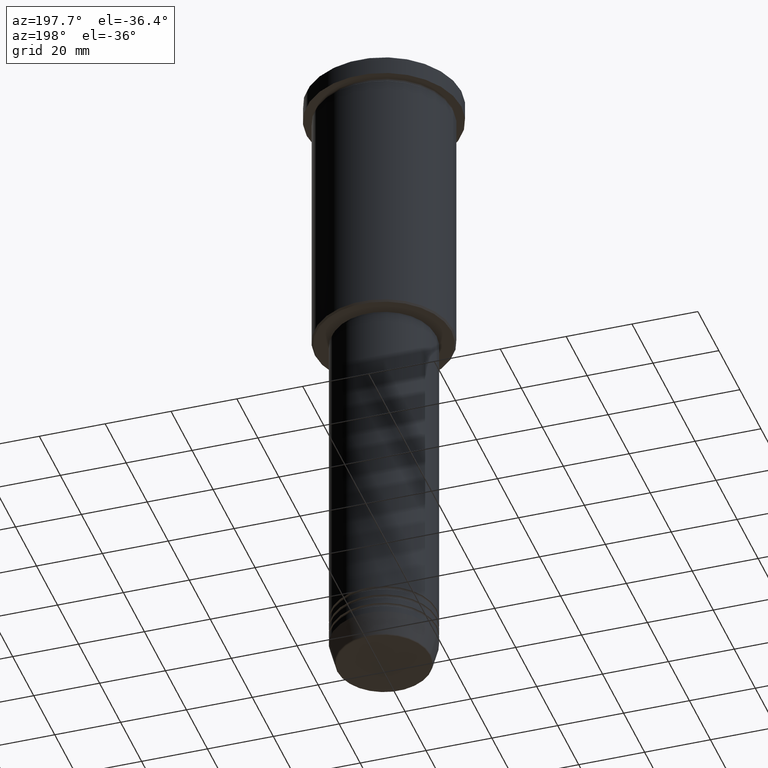
[diagram: clean part render]
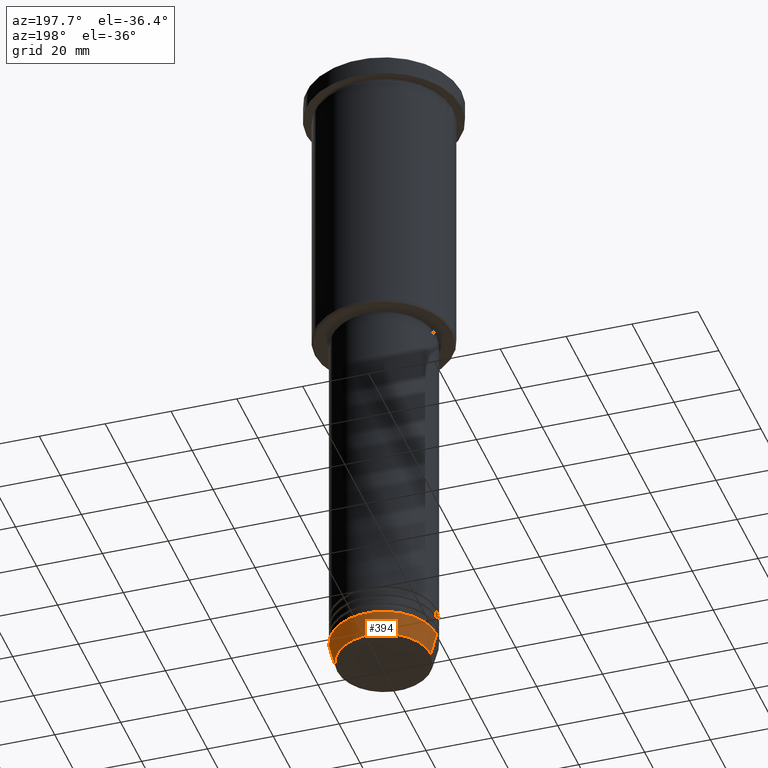
[diagram: same view with one face highlighted and labeled with its STEP entity id]
A machine part, auxiliary view. The second image highlights one B-rep face of the part: STEP entity #394.
In plain terms, the highlighted conical surface has half-angle 15 deg.
Its self-contained STEP definition (entity closure, byte-faithful):
#16 = ORIENTED_EDGE ( 'NONE', *, *, #570, .T. ) ;
#65 = CIRCLE ( 'NONE', #293, 16.00000000000000000 ) ;
#84 = DIRECTION ( 'NONE',  ( 1.000000000000000000, 0.000000000000000000, 0.000000000000000000 ) ) ;
#96 = ORIENTED_EDGE ( 'NONE', *, *, #1157, .F. ) ;
#101 = VECTOR ( 'NONE', #573, 1000.000000000000000 ) ;
#127 = LINE ( 'NONE', #314, #544 ) ;
#177 = CARTESIAN_POINT ( 'NONE',  ( 0.000000000000000000, 0.000000000000000000, -194.0000000000000000 ) ) ;
#238 = DIRECTION ( 'NONE',  ( -0.000000000000000000, -0.000000000000000000, 1.000000000000000000 ) ) ;
#276 = VERTEX_POINT ( 'NONE', #990 ) ;
#293 = AXIS2_PLACEMENT_3D ( 'NONE', #177, #988, #84 ) ;
#294 = CARTESIAN_POINT ( 'NONE',  ( 16.00000000000000000, 0.000000000000000000, -194.0000000000000000 ) ) ;
#314 = CARTESIAN_POINT ( 'NONE',  ( -16.00000000000000000, 1.959434878635765131E-15, -194.0000000000000000 ) ) ;
#324 = DIRECTION ( 'NONE',  ( -0.2588190451025213501, 3.169619151431772337E-17, 0.9659258262890680902 ) ) ;
#341 = DIRECTION ( 'NONE',  ( -0.000000000000000000, -0.000000000000000000, 1.000000000000000000 ) ) ;
#394 = ADVANCED_FACE ( 'NONE', ( #557 ), #936, .T. ) ;
#403 = VERTEX_POINT ( 'NONE', #747 ) ;
#420 = CARTESIAN_POINT ( 'NONE',  ( -16.00000000000000000, 1.959434878635765131E-15, -194.0000000000000000 ) ) ;
#426 = EDGE_CURVE ( 'NONE', #592, #403, #927, .T. ) ;
#544 = VECTOR ( 'NONE', #324, 1000.000000000000000 ) ;
#557 = FACE_OUTER_BOUND ( 'NONE', #761, .T. ) ;
#570 = EDGE_CURVE ( 'NONE', #276, #651, #127, .T. ) ;
#573 = DIRECTION ( 'NONE',  ( 0.2588190451025213501, 0.000000000000000000, 0.9659258262890680902 ) ) ;
#592 = VERTEX_POINT ( 'NONE', #959 ) ;
#602 = CIRCLE ( 'NONE', #864, 14.22365507213718239 ) ;
#607 = DIRECTION ( 'NONE',  ( 1.000000000000000000, 0.000000000000000000, 0.000000000000000000 ) ) ;
#651 = VERTEX_POINT ( 'NONE', #420 ) ;
#672 = AXIS2_PLACEMENT_3D ( 'NONE', #917, #341, #1077 ) ;
#688 = EDGE_CURVE ( 'NONE', #592, #276, #602, .T. ) ;
#747 = CARTESIAN_POINT ( 'NONE',  ( 16.00000000000000000, 0.000000000000000000, -194.0000000000000000 ) ) ;
#761 = EDGE_LOOP ( 'NONE', ( #826, #16, #96, #1081 ) ) ;
#826 = ORIENTED_EDGE ( 'NONE', *, *, #688, .T. ) ;
#864 = AXIS2_PLACEMENT_3D ( 'NONE', #1046, #238, #607 ) ;
#917 = CARTESIAN_POINT ( 'NONE',  ( 0.000000000000000000, 0.000000000000000000, -194.0000000000000000 ) ) ;
#927 = LINE ( 'NONE', #294, #101 ) ;
#936 = CONICAL_SURFACE ( 'NONE', #672, 16.00000000000000000, 0.2617993877991500740 ) ;
#959 = CARTESIAN_POINT ( 'NONE',  ( 14.22365507213718239, 0.000000000000000000, -200.6294095225512706 ) ) ;
#988 = DIRECTION ( 'NONE',  ( -0.000000000000000000, -0.000000000000000000, 1.000000000000000000 ) ) ;
#990 = CARTESIAN_POINT ( 'NONE',  ( -14.22365507213718239, 1.850665122131322942E-15, -200.6294095225512706 ) ) ;
#1046 = CARTESIAN_POINT ( 'NONE',  ( 0.000000000000000000, 0.000000000000000000, -200.6294095225512706 ) ) ;
#1077 = DIRECTION ( 'NONE',  ( 1.000000000000000000, 0.000000000000000000, 0.000000000000000000 ) ) ;
#1081 = ORIENTED_EDGE ( 'NONE', *, *, #426, .F. ) ;
#1157 = EDGE_CURVE ( 'NONE', #403, #651, #65, .T. ) ;